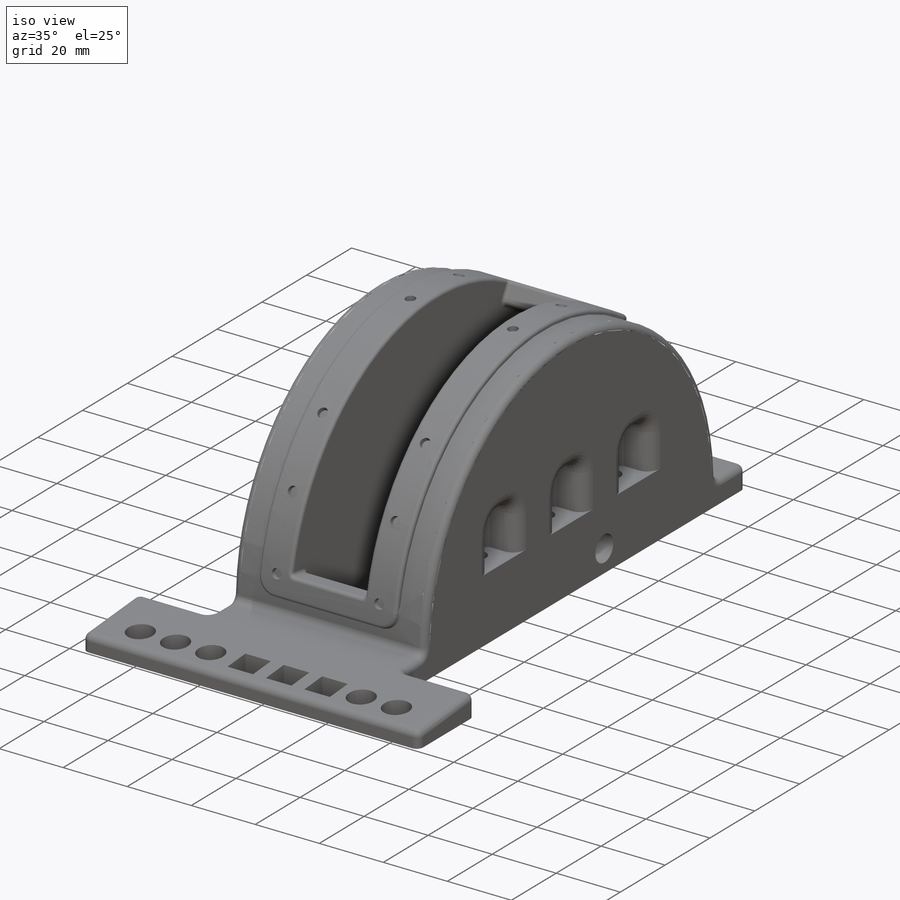
[diagram: iso view]
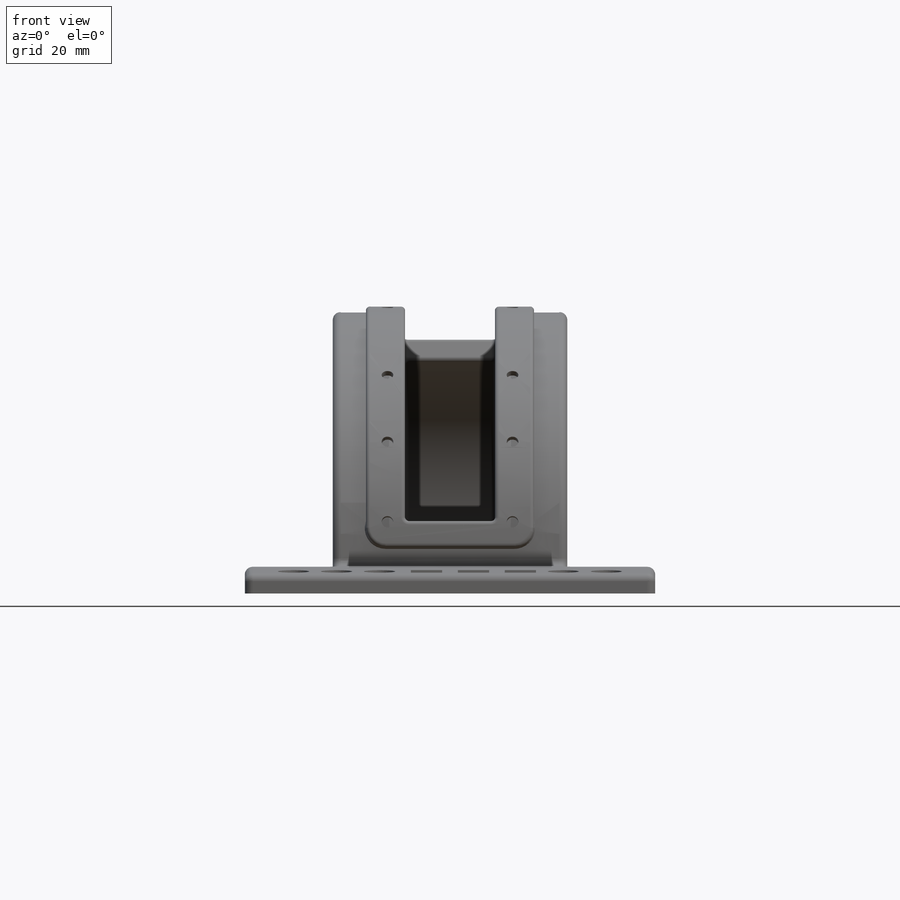
[diagram: front view]
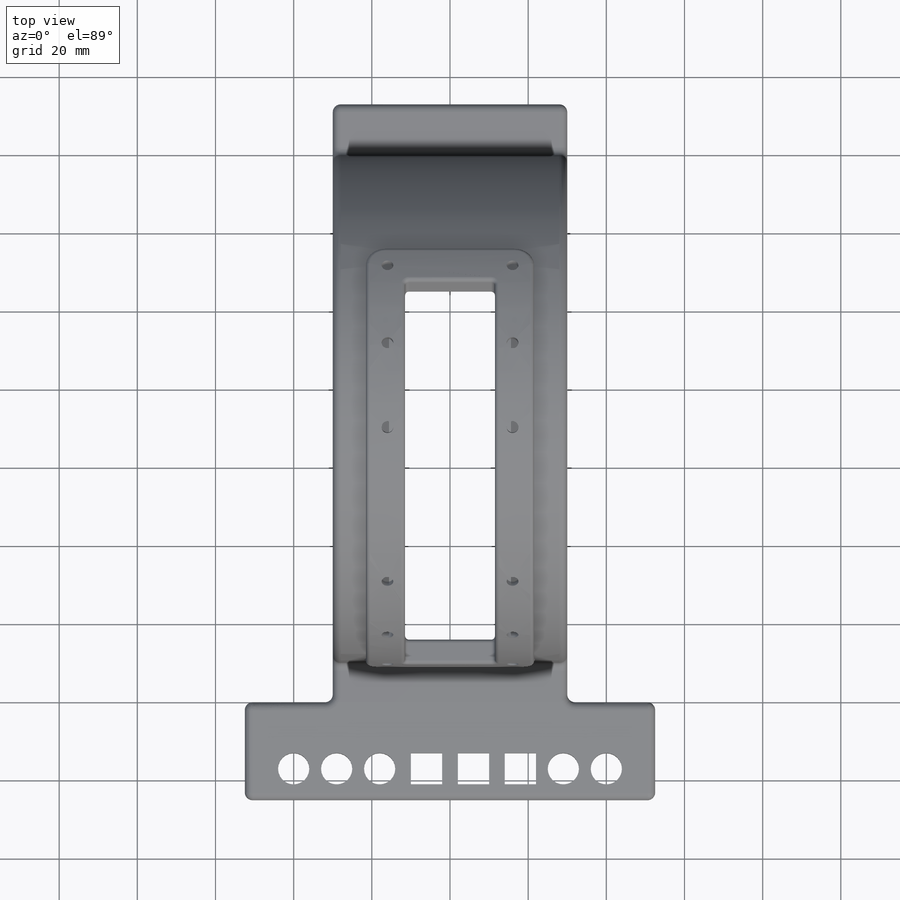
[diagram: top view]
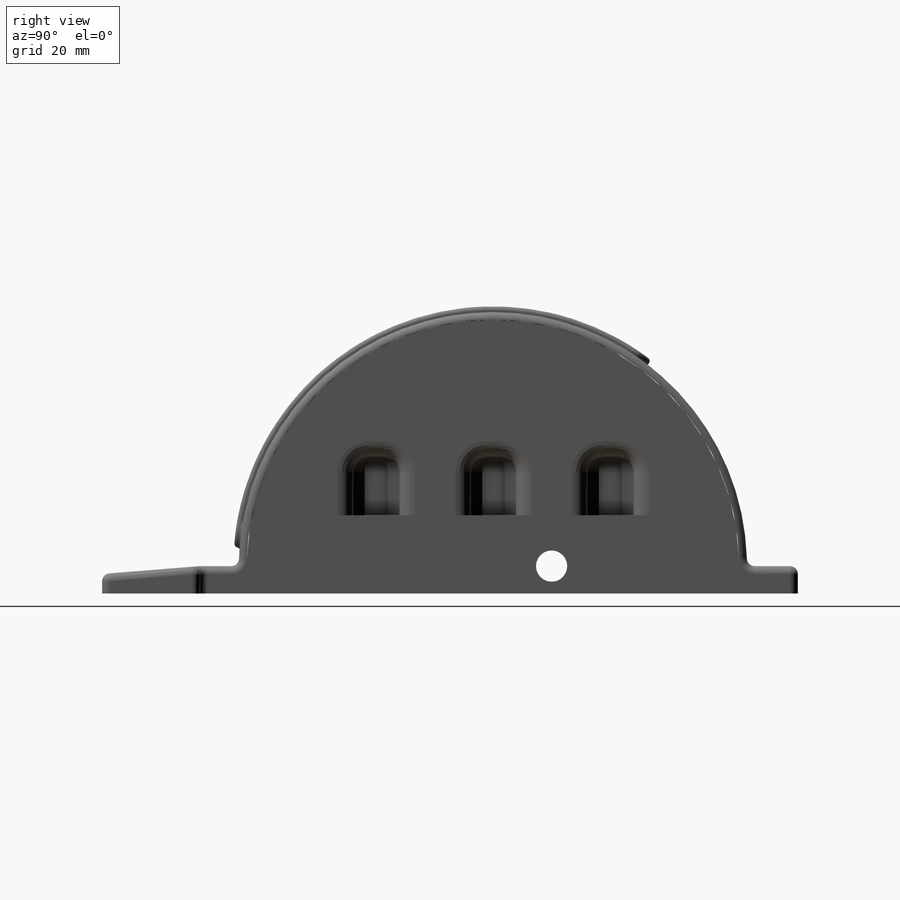
[diagram: right view]
SOLIDWORKS PART (.sldprt)
format: sldprt  version: not decoded by parser v0  size: 1,206,272 bytes
history: native  units: mm
features: sketch x14, cut_extrude x10, fillet x10, extrude x3, chamfer x2, material x1 (+13 scaffold rows collapsed)
feature tree (53):
  scaffold x13  (default folders/planes/origin — collapsed)
  material  "Material <not specified>"
  sketch  "Sketch3"  dims[c1.D1=25.0mm c1.D2=105.0mm c2.D1=7.5mm c2.D2=7.5mm c2.D3=105.0mm c2.D4=25.0mm c2.D5=15.0mm c2.D6=155.0mm c2.D7=30.0mm c3.D6=22.5mm]
  extrude  "Boss-Extrude1"  Depth=7mm
  sketch  "Sketch4"  dims[c1.D1=~73.781218mm c1.D2=~10.881229mm c2.D1=120.0mm c2.D2=11.5mm c2.D3=40.0mm]
  cut_extrude  "Cut-Extrude1"  Depth=10mm
  sketch  "Sketch6"  dims[D1=~7.562347mm]
  extrude  "Boss-Extrude2"  [1 undecoded]
  sketch  "Sketch12"  dims[D1=~2.031041mm]
  extrude  "Boss-Extrude3"  Depth=10mm
  sketch  "Sketch7"  dims[c1.D1=~93.101295mm c2.D1=135.0deg c3.D1=~72.577686mm c4.D1=120.0deg c5.D1=~2.257215mm]
  cut_extrude  "Cut-Extrude3"  [1 undecoded]
  sketch  "Sketch8"  dims[c1.D5=8.0mm c1.D1=88.0mm c1.D2=44.0mm c1.D3=8.0mm c1.D4=17.0mm c2.D5=8.0mm c2.D6=8.0mm c3.D5=8.0mm c3.D6=8.0mm c4.D5=8.0mm c4.D6=8.0mm c5.D5=4.0mm c5.D6=16.0mm c5.D7=28.0mm c5.D8=2.0mm c5.D9=2.0mm c5.D10=14.0mm c5.D11=29.0mm c5.D12=40.0mm c6.D5=29.0mm c6.D6=18.0mm]
  cut_extrude  "Cut-Extrude4"  Depth=19mm
  sketch  "Sketch10"  dims[D1=8.0mm]
  cut_extrude  "Cut-Extrude6"  [1 undecoded]
  chamfer  "Chamfer1"  Distance=2mm
  fillet  "Fillet1"  Radius=2mm
  fillet  "Fillet2"  Radius=2mm
  fillet  "Fillet3"  Radius=5mm
  fillet  "Fillet4"  Radius=1mm
  fillet  "Fillet5"  Radius=1mm
  sketch  "Sketch13"  dims[c1.D1=4.5mm c1.D4=21.8mm c1.D5=18.0mm c1.D6=32.0mm c1.D2=2.0 c1.D3=7.0 c2.D1=1.5mm]
  fillet  "Fillet6"  Radius=1mm
  sketch  "Sketch14"  dims[c1.D1=6.0mm c1.D4=6.0mm c2.D1=30.0mm c2.D2=30.0mm c2.D3=30.0mm c2.D4=30.0mm]
  cut_extrude  "Cut-Extrude7"  Depth=20mm
  sketch  "Sketch15"  dims[c1.D1=70.0mm c1.D2=6.0mm c2.D1=~11.777239mm c2.D2=~12.090111mm c3.D1=~11.559414mm c3.D2=~12.154594mm c4.D1=~11.777945mm c4.D2=~12.154594mm c5.D1=~11.777945mm c5.D2=~11.794793mm c6.D1=~11.777945mm c6.D2=~12.501798mm c7.D1=~11.777945mm c7.D2=~10.471224mm c8.D1=30.0mm c9.D1=60.0deg]
  cut_extrude  "Cut-Extrude8"  Depth=15mm
  fillet  "Fillet8"  Radius=4mm
  chamfer  "Chamfer2"  Distance=0.5mm Angle=29deg
  fillet  "Fillet9"  Radius=0.5mm
  sketch  "Sketch16"  dims[D1=5.0mm]
  cut_extrude  "Cut-Extrude9"  Depth=14mm
  sketch  "Sketch17"  dims[D1=~9.966524mm D2=15.0mm]
  cut_extrude  "Cut-Extrude10"  [1 undecoded]
  fillet  "Fillet10"  Radius=2mm
  sketch  "Sketch18"  dims[c1.D1=5.97mm c1.D2=1.0mm c2.D1=5.97mm c2.D2=1.0mm c3.D1=2.0mm]
  cut_extrude  "Cut-Extrude11"  Depth=2mm
  fillet  "Fillet11"  Radius=0.5mm
  sketch  "Sketch19"  dims[D1=8.0mm]
  cut_extrude  "Cut-Extrude12"  [1 undecoded]
decode coverage: 34 of 39 modeling features carry decoded parameters
note: ~ marks probable driven/reference dimensions
note: 5 parameter values undecoded
summary: no parameter record found for 5 features
note: suppression state not decoded; provenance and decode notes live in map.json
